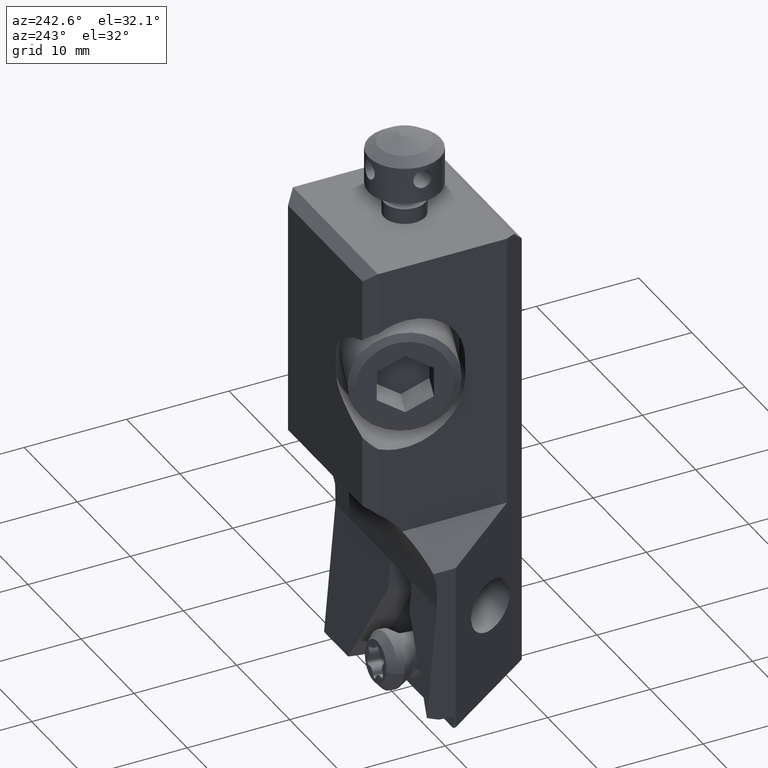
[diagram: clean part render]
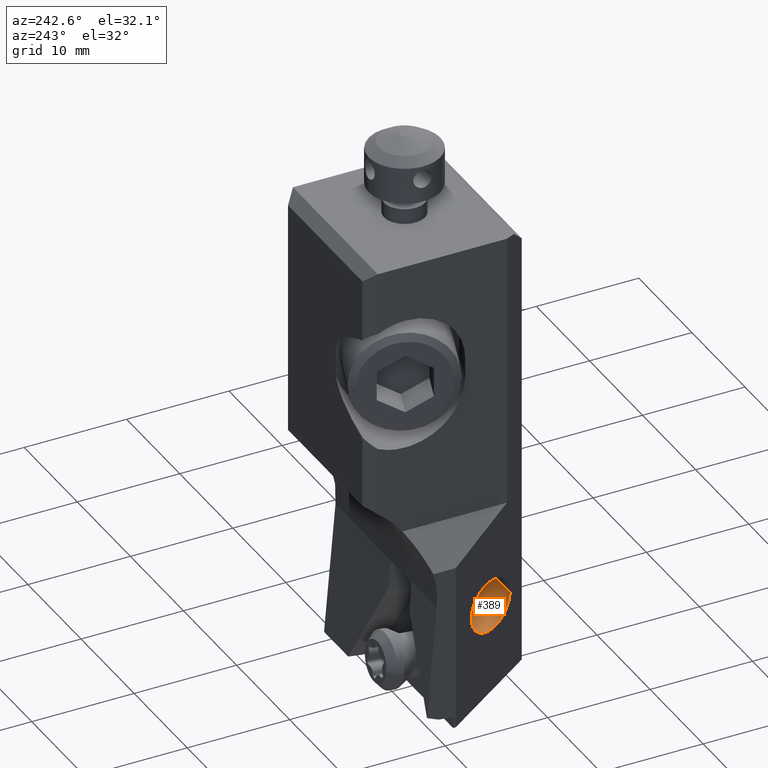
[diagram: same view with one face highlighted and labeled with its STEP entity id]
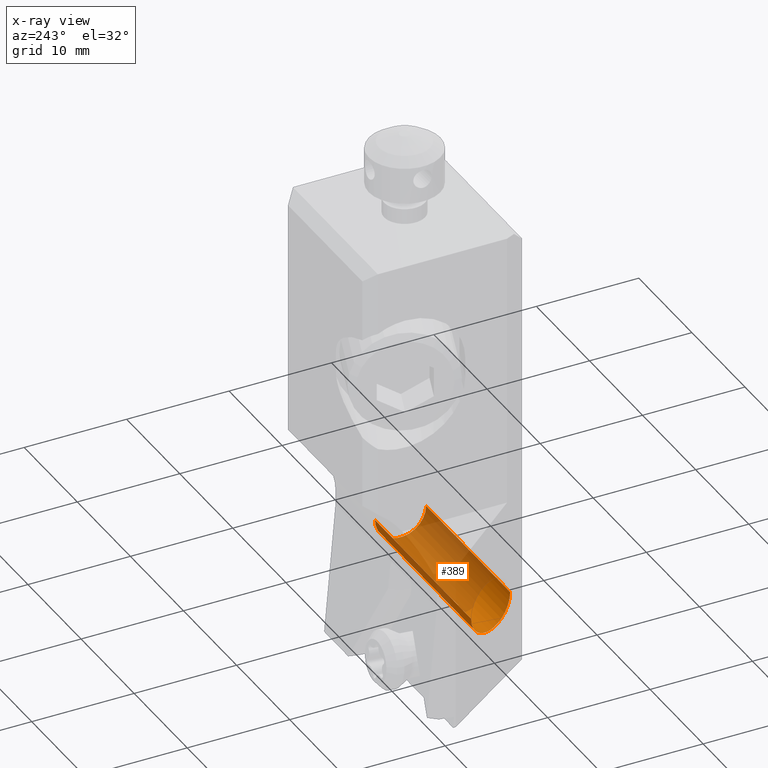
[diagram: x-ray of the same camera — body ghosted, the highlighted face saturated]
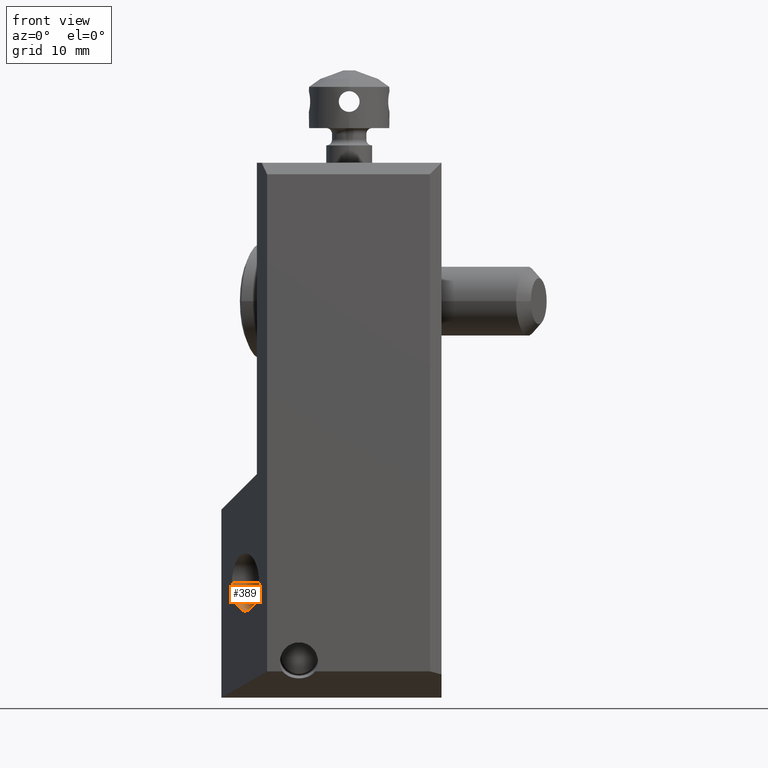
[diagram: same view with one face highlighted and labeled with its STEP entity id]
A machine part, auxiliary view. The second image highlights one B-rep face of the part: STEP entity #389.
The next image is the same camera in x-ray: the body ghosted, the highlighted face saturated — about 75% of this face is hidden behind the body in this view.
A second angle (front view) of the same face is appended — the face is thin or edge-on in the first view.
In plain terms, the highlighted cylindrical surface (edge-blend (fillet) strip) has radius 2.5 mm, axis along (1, 0, 0).
Its self-contained STEP definition (entity closure, byte-faithful):
#166=CYLINDRICAL_SURFACE('',#2726,2.5);
#222=CIRCLE('',#2670,2.5);
#389=ADVANCED_FACE('',(#575),#166,.F.);
#575=FACE_OUTER_BOUND('',#712,.T.);
#712=EDGE_LOOP('',(#1046,#1047,#1048,#1049));
#845=ELLIPSE('',#2722,2.7584447974062,2.5);
#1046=ORIENTED_EDGE('',*,*,#1936,.F.);
#1047=ORIENTED_EDGE('',*,*,#1933,.T.);
#1048=ORIENTED_EDGE('',*,*,#1935,.F.);
#1049=ORIENTED_EDGE('',*,*,#1855,.T.);
#1611=VERTEX_POINT('',#3835);
#1612=VERTEX_POINT('',#3836);
#1662=VERTEX_POINT('',#3991);
#1663=VERTEX_POINT('',#3992);
#1855=EDGE_CURVE('',#1611,#1612,#222,.T.);
#1933=EDGE_CURVE('',#1662,#1663,#845,.T.);
#1935=EDGE_CURVE('',#1611,#1663,#2269,.T.);
#1936=EDGE_CURVE('',#1662,#1612,#2270,.T.);
#2269=LINE('',#3995,#2443);
#2270=LINE('',#3996,#2444);
#2443=VECTOR('',#3201,1.);
#2444=VECTOR('',#3202,1.);
#2670=AXIS2_PLACEMENT_3D('',#3834,#3038,#3039);
#2722=AXIS2_PLACEMENT_3D('',#3990,#3195,#3196);
#2726=AXIS2_PLACEMENT_3D('',#3998,#3205,#3206);
#3038=DIRECTION('',(1.,0.,0.));
#3039=DIRECTION('',(0.,-1.,0.));
#3195=DIRECTION('',(-0.906307787036659,-0.422618261740681,0.));
#3196=DIRECTION('',(0.422618261740681,-0.906307787036659,0.));
#3201=DIRECTION('',(-1.,-5.235283090106E-14,0.));
#3202=DIRECTION('',(1.,4.243314964123E-14,0.));
#3205=DIRECTION('',(1.,0.,0.));
#3206=DIRECTION('',(0.,-1.,0.));
#3834=CARTESIAN_POINT('',(-1.06581410364E-14,4.,-36.36162800757));
#3835=CARTESIAN_POINT('',(-1.06581410364E-14,1.5,-36.36162800757));
#3836=CARTESIAN_POINT('',(-1.06581410364E-14,6.5,-36.36162800757));
#3990=CARTESIAN_POINT('',(-16.9816155383022,4.,-36.36162800757));
#3991=CARTESIAN_POINT('',(-18.1473846836896,6.4999999999995,-36.36162800757));
#3992=CARTESIAN_POINT('',(-15.8158463929172,1.49999999999959,-36.36162800757));
#3995=CARTESIAN_POINT('',(0.,1.5,-36.36162800757));
#3996=CARTESIAN_POINT('',(-18.14738468369,6.499999999999,-36.36162800757));
#3998=CARTESIAN_POINT('',(-18.51033237736,4.,-36.36162800757));